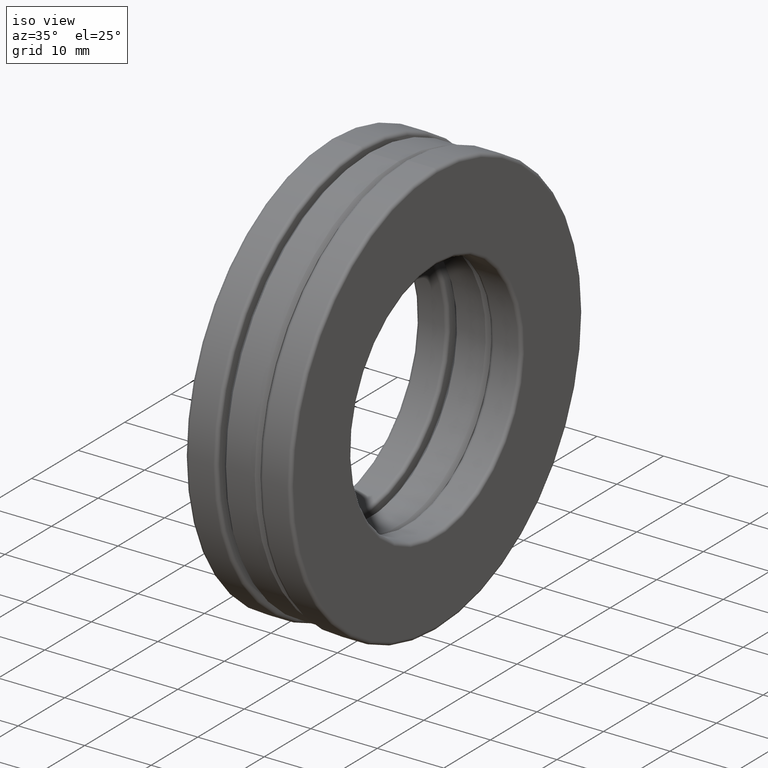
[diagram: clean part render]
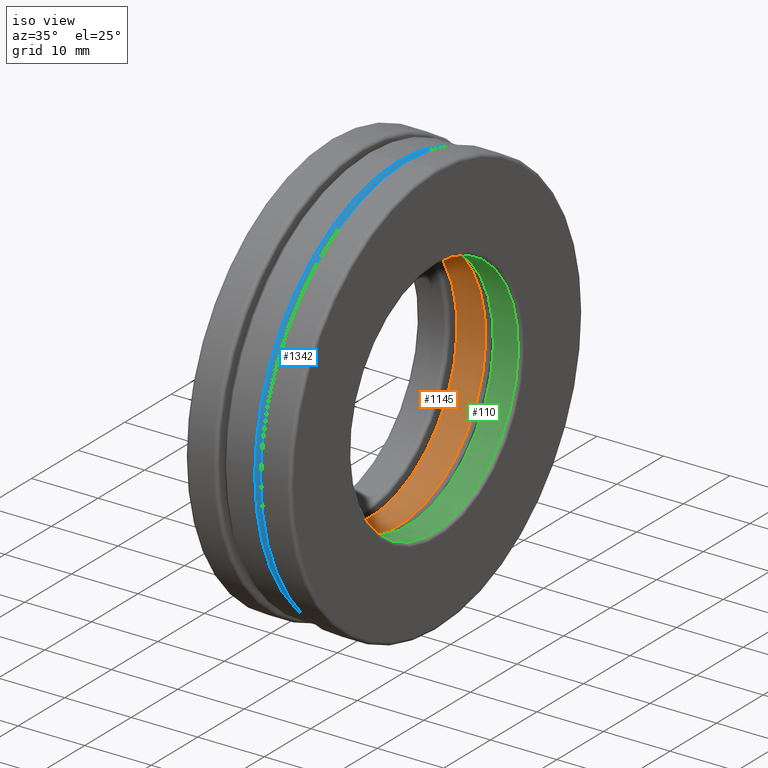
[diagram: same view with three faces highlighted in distinct colors, each labeled with its STEP entity id]
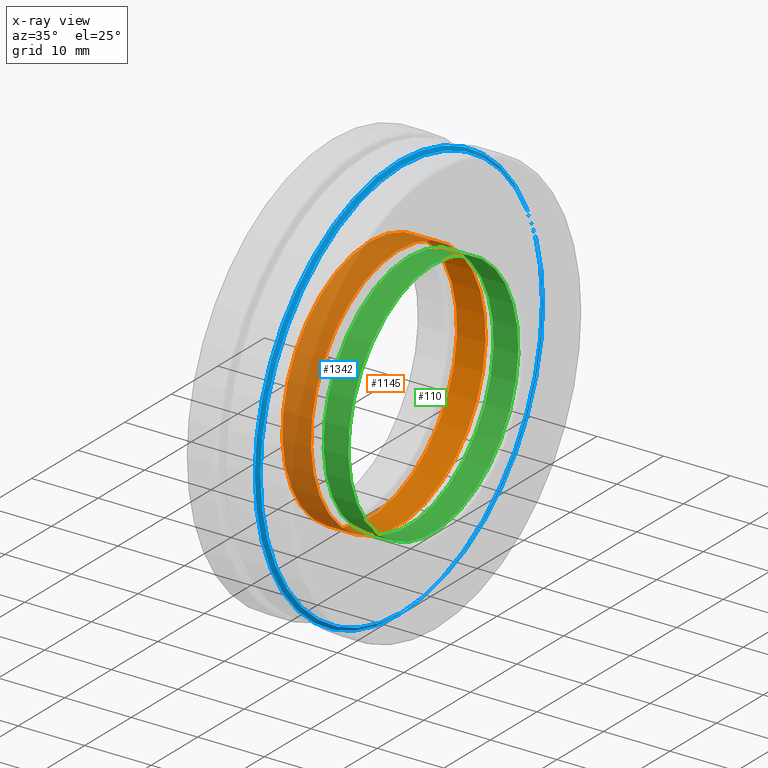
[diagram: x-ray of the same camera — body ghosted, the three highlighted faces saturated]
A machine part, iso view with three faces highlighted in distinct colors.
The next image is the same camera in x-ray (body ghosted, the three faces saturated) — at least one of them is partly hidden behind the body in this view.
Their STEP definitions:

[orange] entity #1145 — the highlighted cylindrical surface (bore or boss wall) has radius 18.7643 mm, axis along (-1, -0, -0).
#14 = CARTESIAN_POINT ( 'NONE',  ( -0.08499999999999995100, 0.0000000000000000000, 0.7387500000000000200 ) ) ;
#187 = FACE_OUTER_BOUND ( 'NONE', #982, .T. ) ;
#275 = DIRECTION ( 'NONE',  ( 0.0000000000000000000, 0.0000000000000000000, 1.000000000000000000 ) ) ;
#289 = VERTEX_POINT ( 'NONE', #14 ) ;
#360 = FACE_OUTER_BOUND ( 'NONE', #691, .T. ) ;
#387 = DIRECTION ( 'NONE',  ( 0.0000000000000000000, 0.0000000000000000000, 1.000000000000000000 ) ) ;
#434 = CARTESIAN_POINT ( 'NONE',  ( 0.08500000000000004800, 0.0000000000000000000, 0.7387500000000000200 ) ) ;
#444 = DIRECTION ( 'NONE',  ( 0.0000000000000000000, 0.0000000000000000000, 1.000000000000000000 ) ) ;
#456 = CARTESIAN_POINT ( 'NONE',  ( -0.08499999999999995100, 0.0000000000000000000, 0.0000000000000000000 ) ) ;
#467 = CYLINDRICAL_SURFACE ( 'NONE', #1328, 0.7387500000000000200 ) ;
#597 = AXIS2_PLACEMENT_3D ( 'NONE', #638, #622, #275 ) ;
#622 = DIRECTION ( 'NONE',  ( -1.000000000000000000, -0.0000000000000000000, -0.0000000000000000000 ) ) ;
#638 = CARTESIAN_POINT ( 'NONE',  ( 0.08500000000000004800, 0.0000000000000000000, 0.0000000000000000000 ) ) ;
#690 = CIRCLE ( 'NONE', #597, 0.7387500000000000200 ) ;
#691 = EDGE_LOOP ( 'NONE', ( #874 ) ) ;
#783 = EDGE_CURVE ( 'NONE', #1470, #1470, #690, .T. ) ;
#830 = CIRCLE ( 'NONE', #1348, 0.7387500000000000200 ) ;
#840 = CARTESIAN_POINT ( 'NONE',  ( 0.0000000000000000000, 0.0000000000000000000, 0.0000000000000000000 ) ) ;
#874 = ORIENTED_EDGE ( 'NONE', *, *, #783, .F. ) ;
#936 = ORIENTED_EDGE ( 'NONE', *, *, #1375, .T. ) ;
#958 = DIRECTION ( 'NONE',  ( -1.000000000000000000, -0.0000000000000000000, -0.0000000000000000000 ) ) ;
#982 = EDGE_LOOP ( 'NONE', ( #936 ) ) ;
#1145 = ADVANCED_FACE ( 'NONE', ( #360, #187 ), #467, .F. ) ;
#1328 = AXIS2_PLACEMENT_3D ( 'NONE', #840, #958, #387 ) ;
#1348 = AXIS2_PLACEMENT_3D ( 'NONE', #456, #1388, #444 ) ;
#1375 = EDGE_CURVE ( 'NONE', #289, #289, #830, .T. ) ;
#1388 = DIRECTION ( 'NONE',  ( -1.000000000000000000, -0.0000000000000000000, -0.0000000000000000000 ) ) ;
#1470 = VERTEX_POINT ( 'NONE', #434 ) ;

[blue] entity #1342 — the highlighted conical surface has half-angle 45 deg.
#47 = DIRECTION ( 'NONE',  ( -1.000000000000000000, -0.0000000000000000000, -0.0000000000000000000 ) ) ;
#65 = EDGE_LOOP ( 'NONE', ( #518 ) ) ;
#133 = VERTEX_POINT ( 'NONE', #1126 ) ;
#166 = CARTESIAN_POINT ( 'NONE',  ( 0.08499999999999997800, 0.0000000000000000000, 0.0000000000000000000 ) ) ;
#284 = FACE_OUTER_BOUND ( 'NONE', #862, .T. ) ;
#375 = AXIS2_PLACEMENT_3D ( 'NONE', #166, #47, #1189 ) ;
#487 = CARTESIAN_POINT ( 'NONE',  ( 0.08499999999999997800, 0.0000000000000000000, 0.0000000000000000000 ) ) ;
#518 = ORIENTED_EDGE ( 'NONE', *, *, #734, .T. ) ;
#562 = CARTESIAN_POINT ( 'NONE',  ( 0.1050000000000000100, 0.0000000000000000000, 1.194375000000000000 ) ) ;
#592 = FACE_BOUND ( 'NONE', #65, .T. ) ;
#654 = CARTESIAN_POINT ( 'NONE',  ( 0.1050000000000000100, 0.0000000000000000000, 0.0000000000000000000 ) ) ;
#685 = DIRECTION ( 'NONE',  ( 0.0000000000000000000, 0.0000000000000000000, 1.000000000000000000 ) ) ;
#734 = EDGE_CURVE ( 'NONE', #915, #915, #829, .T. ) ;
#803 = EDGE_CURVE ( 'NONE', #133, #133, #1337, .T. ) ;
#829 = CIRCLE ( 'NONE', #1293, 1.194375000000000000 ) ;
#862 = EDGE_LOOP ( 'NONE', ( #1382 ) ) ;
#868 = DIRECTION ( 'NONE',  ( 0.0000000000000000000, 0.0000000000000000000, 1.000000000000000000 ) ) ;
#915 = VERTEX_POINT ( 'NONE', #562 ) ;
#1104 = DIRECTION ( 'NONE',  ( -1.000000000000000000, -0.0000000000000000000, -0.0000000000000000000 ) ) ;
#1107 = AXIS2_PLACEMENT_3D ( 'NONE', #487, #1462, #685 ) ;
#1118 = CONICAL_SURFACE ( 'NONE', #1107, 1.214375000000000000, 0.7853981633974526100 ) ;
#1126 = CARTESIAN_POINT ( 'NONE',  ( 0.08499999999999997800, 0.0000000000000000000, 1.214375000000000000 ) ) ;
#1189 = DIRECTION ( 'NONE',  ( 0.0000000000000000000, 0.0000000000000000000, 1.000000000000000000 ) ) ;
#1293 = AXIS2_PLACEMENT_3D ( 'NONE', #654, #1104, #868 ) ;
#1337 = CIRCLE ( 'NONE', #375, 1.214375000000000000 ) ;
#1342 = ADVANCED_FACE ( 'NONE', ( #592, #284 ), #1118, .T. ) ;
#1382 = ORIENTED_EDGE ( 'NONE', *, *, #803, .F. ) ;
#1462 = DIRECTION ( 'NONE',  ( -1.000000000000000000, -0.0000000000000000000, -0.0000000000000000000 ) ) ;

[green] entity #110 — the highlighted cylindrical surface (bore or boss wall) has radius 18.2562 mm, axis along (-1, -0, -0).
#3 = EDGE_LOOP ( 'NONE', ( #459 ) ) ;
#96 = EDGE_CURVE ( 'NONE', #938, #938, #313, .T. ) ;
#110 = ADVANCED_FACE ( 'NONE', ( #236, #844 ), #1066, .F. ) ;
#236 = FACE_OUTER_BOUND ( 'NONE', #1097, .T. ) ;
#247 = AXIS2_PLACEMENT_3D ( 'NONE', #702, #1343, #334 ) ;
#291 = DIRECTION ( 'NONE',  ( -1.000000000000000000, -0.0000000000000000000, -0.0000000000000000000 ) ) ;
#313 = CIRCLE ( 'NONE', #1218, 0.7187500000000000000 ) ;
#331 = AXIS2_PLACEMENT_3D ( 'NONE', #857, #291, #1190 ) ;
#334 = DIRECTION ( 'NONE',  ( 0.0000000000000000000, 0.0000000000000000000, 1.000000000000000000 ) ) ;
#459 = ORIENTED_EDGE ( 'NONE', *, *, #96, .F. ) ;
#590 = ORIENTED_EDGE ( 'NONE', *, *, #1410, .T. ) ;
#699 = VERTEX_POINT ( 'NONE', #811 ) ;
#702 = CARTESIAN_POINT ( 'NONE',  ( 0.1450000000000000500, 0.0000000000000000000, 0.0000000000000000000 ) ) ;
#719 = CARTESIAN_POINT ( 'NONE',  ( 0.2925000000000000400, 0.0000000000000000000, 0.7187500000000000000 ) ) ;
#811 = CARTESIAN_POINT ( 'NONE',  ( 0.1450000000000000500, 0.0000000000000000000, 0.7187500000000000000 ) ) ;
#844 = FACE_OUTER_BOUND ( 'NONE', #3, .T. ) ;
#857 = CARTESIAN_POINT ( 'NONE',  ( 0.0000000000000000000, 0.0000000000000000000, 0.0000000000000000000 ) ) ;
#864 = CIRCLE ( 'NONE', #247, 0.7187500000000000000 ) ;
#938 = VERTEX_POINT ( 'NONE', #719 ) ;
#979 = CARTESIAN_POINT ( 'NONE',  ( 0.2925000000000000400, 0.0000000000000000000, 0.0000000000000000000 ) ) ;
#1066 = CYLINDRICAL_SURFACE ( 'NONE', #331, 0.7187500000000000000 ) ;
#1097 = EDGE_LOOP ( 'NONE', ( #590 ) ) ;
#1190 = DIRECTION ( 'NONE',  ( 0.0000000000000000000, 0.0000000000000000000, 1.000000000000000000 ) ) ;
#1218 = AXIS2_PLACEMENT_3D ( 'NONE', #979, #1286, #1423 ) ;
#1286 = DIRECTION ( 'NONE',  ( -1.000000000000000000, -0.0000000000000000000, -0.0000000000000000000 ) ) ;
#1343 = DIRECTION ( 'NONE',  ( -1.000000000000000000, -0.0000000000000000000, -0.0000000000000000000 ) ) ;
#1410 = EDGE_CURVE ( 'NONE', #699, #699, #864, .T. ) ;
#1423 = DIRECTION ( 'NONE',  ( 0.0000000000000000000, 0.0000000000000000000, 1.000000000000000000 ) ) ;